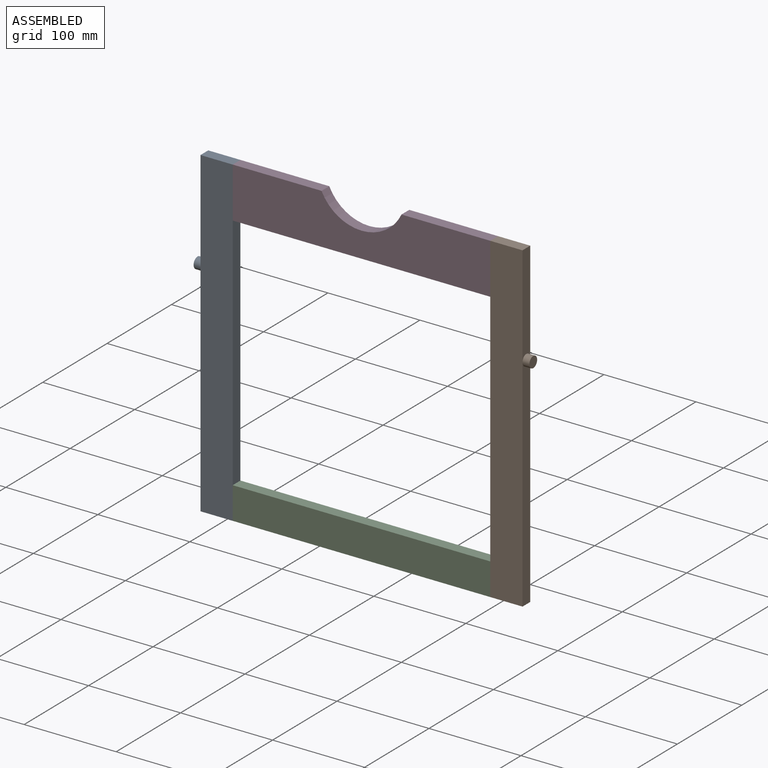
[diagram: assembled view]
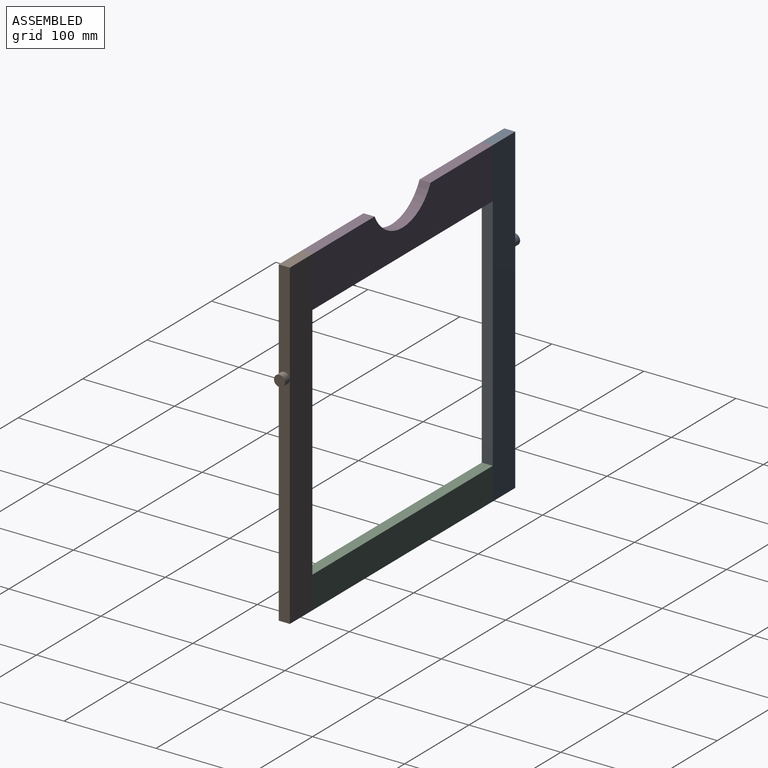
[diagram: assembled view, second angle]
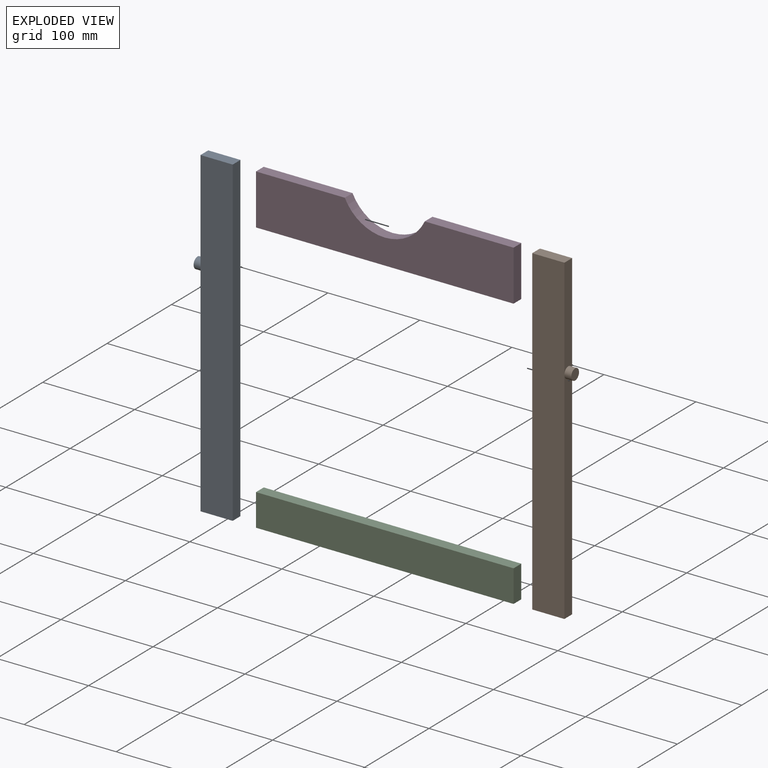
[diagram: exploded view]
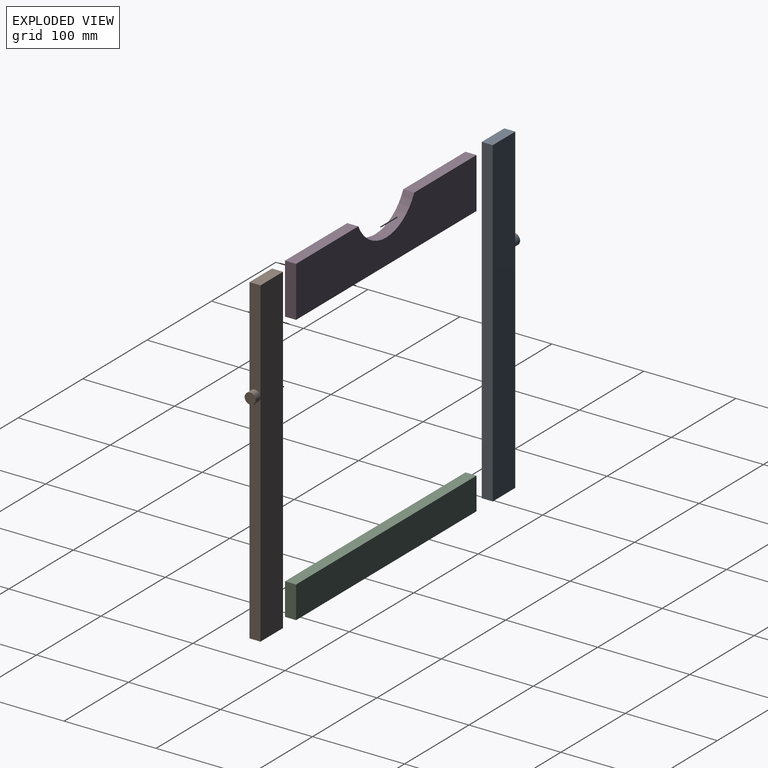
[diagram: exploded view, second angle]
ASSEMBLY  parts=4 mates=3
PART A: 9 faces, bbox 42.5x12x350 mm
  f0: plane 240x12mm, normal (-1,0,0), area 2823.5mm2, adj f1,f5,f6,f7
  f1: plane 35x12mm, normal (0,0,-1), area 420mm2, adj f0,f2,f5,f6
  f2: plane 350x12mm, normal (1,0,0), area 4200mm2, adj f1,f3,f5,f6
  f3: plane 35x12mm, normal (0,0,1), area 420mm2, adj f2,f4,f5,f6
  f4: plane 110x12mm, normal (-1,0,0), area 1263.5mm2, adj f3,f5,f6,f7
  f5: plane 350x35mm, normal (0,-1,0), area 12250mm2, adj f0,f1,f2,f3,f4
  f6: plane 350x35mm, normal (0,1,0), area 12250mm2, adj f0,f1,f2,f3,f4
  f7: cylinder r=6mm len=12mm, axis (1,0,0), area 282.7mm2, adj f0,f4,f8
  f8: plane 12x12mm, normal (-1,0,0), area 113.1mm2, adj f7
PART B: same geometry as A
PART C: 6 faces, bbox 280x12x35 mm
  f0: plane 280x12mm, normal (0,0,-1), area 3360mm2, adj f1,f3,f4,f5
  f1: plane 35x12mm, normal (1,0,0), area 420mm2, adj f0,f2,f4,f5
  f2: plane 280x12mm, normal (0,0,1), area 3360mm2, adj f1,f3,f4,f5
  f3: plane 35x12mm, normal (-1,0,0), area 420mm2, adj f0,f2,f4,f5
  f4: plane 280x35mm, normal (0,-1,0), area 9800mm2, adj f0,f1,f2,f3
  f5: plane 280x35mm, normal (0,1,0), area 9800mm2, adj f0,f1,f2,f3
PART D: 8 faces, bbox 280x12x55 mm
  f0: cylinder r=48.07mm len=86.9mm, axis (0,1,0), area 1302.1mm2, adj f1,f5,f6,f7
  f1: plane 96.55x12mm, normal (0,0,1), area 1158.6mm2, adj f0,f2,f6,f7
  f2: plane 55x12mm, normal (-1,0,0), area 660mm2, adj f1,f3,f6,f7
  f3: plane 280x12mm, normal (0,0,-1), area 3360mm2, adj f2,f4,f6,f7
  f4: plane 55x12mm, normal (1,0,0), area 660mm2, adj f3,f5,f6,f7
  f5: plane 96.55x12mm, normal (0,0,1), area 1158.6mm2, adj f0,f4,f6,f7
  f6: plane 280x55mm, normal (0,-1,0), area 13685.7mm2, adj f0,f1,f2,f3,f4,f5
  f7: plane 280x55mm, normal (0,1,0), area 13685.7mm2, adj f0,f1,f2,f3,f4,f5
PLACE A t=(-202.12,-43.36,122.1)mm
PLACE B rot(axis=(0,0,1),180deg) t=(112.88,-55.36,122.1)mm
PLACE C t=(-44.62,-43.36,-35.4)mm fixed
PLACE D t=(-44.62,-43.36,269.6)mm
MATE fastened A.f2 <-> C.f3  axis (1,0,0) through (-184.62,-49.36,-52.9)mm
MATE fastened D.f2 <-> A.f2  axis (-1,0,0) through (-184.62,-49.36,297.1)mm
MATE fastened B.f2 <-> D.f4  axis (-1,0,0) through (95.38,-49.36,297.1)mm
